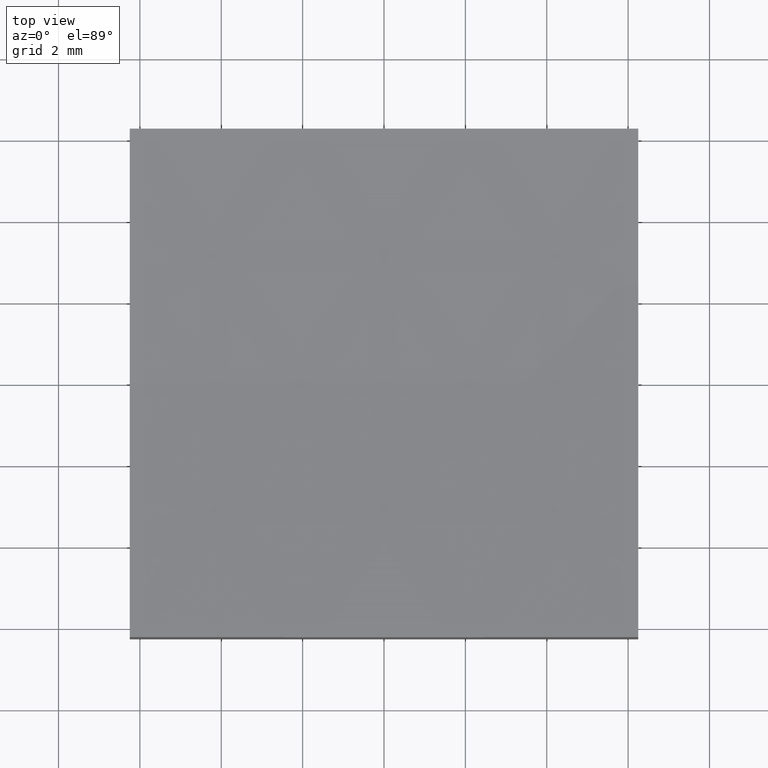
[diagram: clean part render]
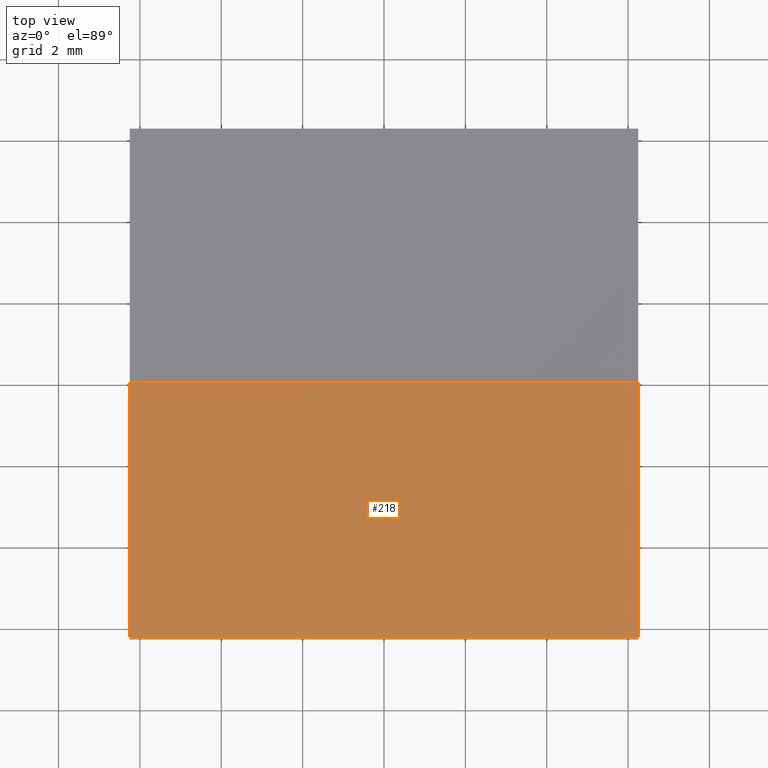
[diagram: same view with one face highlighted and labeled with its STEP entity id]
A machine part, top view. The second image highlights one B-rep face of the part: STEP entity #218.
In plain terms, the highlighted spherical surface has radius 150 mm.
Its self-contained STEP definition (entity closure, byte-faithful):
#2 = CARTESIAN_POINT ( 'NONE',  ( -6.250000000000000000, 7.654042494670983244E-16, 3.130264896477552572 ) ) ;
#3 = VERTEX_POINT ( 'NONE', #142 ) ;
#10 = DIRECTION ( 'NONE',  ( 1.224646799147353207E-16, 1.000000000000000000, 1.519266480857635220E-33 ) ) ;
#11 = CARTESIAN_POINT ( 'NONE',  ( 1.873709602695450291E-14, 0.0000000000000000000, 153.0000000000000000 ) ) ;
#12 = AXIS2_PLACEMENT_3D ( 'NONE', #207, #10, #15 ) ;
#13 = DIRECTION ( 'NONE',  ( -0.0000000000000000000, 1.000000000000000000, 0.0000000000000000000 ) ) ;
#15 = DIRECTION ( 'NONE',  ( -1.000000000000000000, 1.224646799147353207E-16, 0.0000000000000000000 ) ) ;
#19 = AXIS2_PLACEMENT_3D ( 'NONE', #113, #71, #72 ) ;
#30 = DIRECTION ( 'NONE',  ( 0.0000000000000000000, -1.000000000000000000, 0.0000000000000000000 ) ) ;
#57 = CIRCLE ( 'NONE', #12, 149.9999999999999716 ) ;
#61 = VERTEX_POINT ( 'NONE', #2 ) ;
#64 = ORIENTED_EDGE ( 'NONE', *, *, #242, .T. ) ;
#66 = DIRECTION ( 'NONE',  ( 0.0000000000000000000, 0.0000000000000000000, 1.000000000000000000 ) ) ;
#71 = DIRECTION ( 'NONE',  ( 1.000000000000000000, 0.0000000000000000000, -0.0000000000000000000 ) ) ;
#72 = DIRECTION ( 'NONE',  ( 0.0000000000000000000, 0.0000000000000000000, -1.000000000000000000 ) ) ;
#92 = CARTESIAN_POINT ( 'NONE',  ( 2.978280986107261349E-14, 0.0000000000000000000, 3.000000000000030198 ) ) ;
#94 = CARTESIAN_POINT ( 'NONE',  ( 1.873709602695450291E-14, -6.250000000000000888, 153.0000000000000000 ) ) ;
#98 = CIRCLE ( 'NONE', #158, 149.9999999999999716 ) ;
#99 = ORIENTED_EDGE ( 'NONE', *, *, #153, .F. ) ;
#108 = DIRECTION ( 'NONE',  ( 0.0000000000000000000, 0.0000000000000000000, -1.000000000000000000 ) ) ;
#112 = DIRECTION ( 'NONE',  ( 1.000000000000000000, 0.0000000000000000000, 0.0000000000000000000 ) ) ;
#113 = CARTESIAN_POINT ( 'NONE',  ( -6.250000000000000000, 0.0000000000000000000, 153.0000000000000000 ) ) ;
#119 = AXIS2_PLACEMENT_3D ( 'NONE', #223, #13, #112 ) ;
#122 = ORIENTED_EDGE ( 'NONE', *, *, #185, .F. ) ;
#132 = VERTEX_POINT ( 'NONE', #203 ) ;
#136 = SPHERICAL_SURFACE ( 'NONE', #119, 149.9999999999999716 ) ;
#142 = CARTESIAN_POINT ( 'NONE',  ( 6.250000000000000000, 0.0000000000000000000, 3.130264896477552572 ) ) ;
#148 = AXIS2_PLACEMENT_3D ( 'NONE', #241, #230, #151 ) ;
#151 = DIRECTION ( 'NONE',  ( 0.0000000000000000000, 0.0000000000000000000, -1.000000000000000000 ) ) ;
#153 = EDGE_CURVE ( 'NONE', #202, #61, #210, .T. ) ;
#156 = EDGE_CURVE ( 'NONE', #220, #3, #98, .T. ) ;
#158 = AXIS2_PLACEMENT_3D ( 'NONE', #11, #30, #108 ) ;
#172 = CARTESIAN_POINT ( 'NONE',  ( -6.250000000000000000, -6.250000000000000888, 3.260643116113293161 ) ) ;
#181 = ORIENTED_EDGE ( 'NONE', *, *, #156, .F. ) ;
#185 = EDGE_CURVE ( 'NONE', #132, #202, #190, .T. ) ;
#186 = DIRECTION ( 'NONE',  ( 0.0000000000000000000, 1.000000000000000000, 0.0000000000000000000 ) ) ;
#190 = CIRCLE ( 'NONE', #239, 149.8697351035224585 ) ;
#193 = CIRCLE ( 'NONE', #148, 149.8697351035224585 ) ;
#197 = ORIENTED_EDGE ( 'NONE', *, *, #205, .T. ) ;
#202 = VERTEX_POINT ( 'NONE', #172 ) ;
#203 = CARTESIAN_POINT ( 'NONE',  ( 6.250000000000000000, -6.250000000000000888, 3.260643116113293161 ) ) ;
#205 = EDGE_CURVE ( 'NONE', #220, #61, #57, .T. ) ;
#207 = CARTESIAN_POINT ( 'NONE',  ( 1.873709602695450291E-14, 0.0000000000000000000, 153.0000000000000000 ) ) ;
#208 = FACE_OUTER_BOUND ( 'NONE', #217, .T. ) ;
#210 = CIRCLE ( 'NONE', #19, 149.8697351035224585 ) ;
#217 = EDGE_LOOP ( 'NONE', ( #181, #197, #99, #122, #64 ) ) ;
#218 = ADVANCED_FACE ( 'NONE', ( #208 ), #136, .F. ) ;
#220 = VERTEX_POINT ( 'NONE', #92 ) ;
#223 = CARTESIAN_POINT ( 'NONE',  ( 1.873709602695450291E-14, 0.0000000000000000000, 153.0000000000000000 ) ) ;
#230 = DIRECTION ( 'NONE',  ( 1.000000000000000000, 0.0000000000000000000, -0.0000000000000000000 ) ) ;
#239 = AXIS2_PLACEMENT_3D ( 'NONE', #94, #186, #66 ) ;
#241 = CARTESIAN_POINT ( 'NONE',  ( 6.250000000000000000, 0.0000000000000000000, 153.0000000000000000 ) ) ;
#242 = EDGE_CURVE ( 'NONE', #132, #3, #193, .T. ) ;